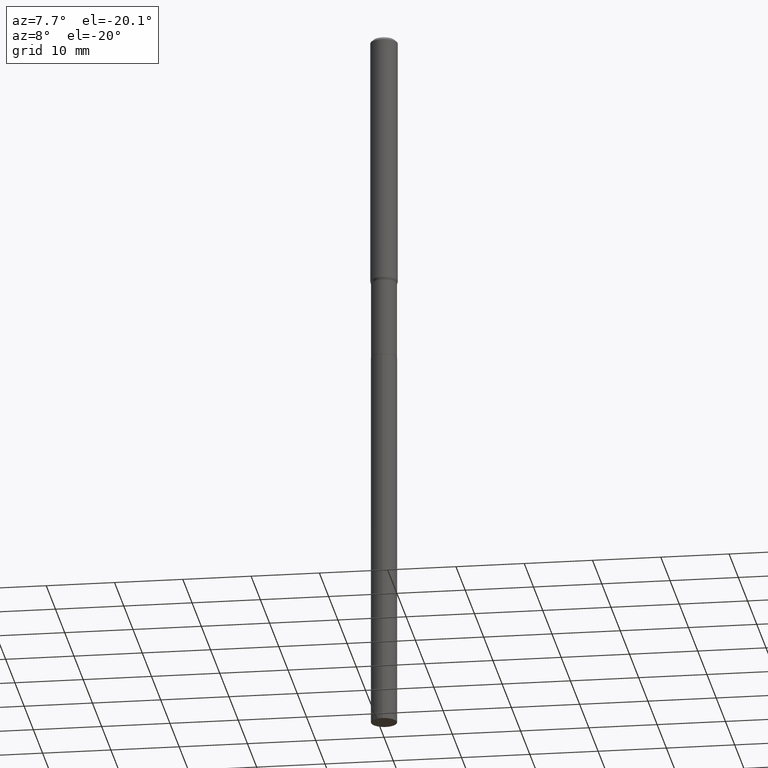
[diagram: clean part render]
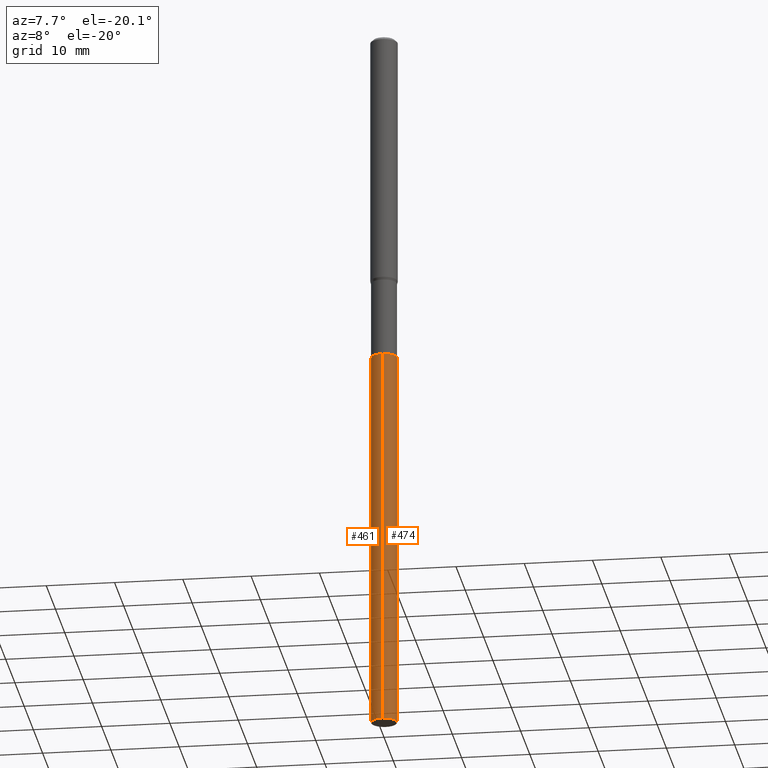
[diagram: same view with one multi-face feature highlighted, each face labeled with its STEP entity id]
A machine part, auxiliary view. The highlighted faces form ONE feature: a constant-radius fillet chain: 2 tangent blend faces with common blend radius 1.8999 mm. The faces share edges in the B-rep.
Their STEP definitions:
[1] entity #461 (Cylinder):
#1 = CARTESIAN_POINT ( 'NONE',  ( -5.223256082908854688E-16, -0.07480000000000673610, -1.929099999999999371 ) ) ;
#7 = EDGE_CURVE ( 'NONE', #168, #466, #193, .T. ) ;
#26 = CYLINDRICAL_SURFACE ( 'NONE', #119, 0.07480000000000000537 ) ;
#31 = VECTOR ( 'NONE', #179, 39.37007874015748143 ) ;
#48 = ORIENTED_EDGE ( 'NONE', *, *, #7, .F. ) ;
#53 = EDGE_CURVE ( 'NONE', #168, #243, #441, .T. ) ;
#87 = EDGE_CURVE ( 'NONE', #466, #319, #94, .T. ) ;
#94 = CIRCLE ( 'NONE', #161, 0.07480000000000000537 ) ;
#100 = DIRECTION ( 'NONE',  ( -2.445434340276301714E-29, 3.491530695986274955E-15, 1.000000000000000000 ) ) ;
#102 = CARTESIAN_POINT ( 'NONE',  ( 4.717553874011746118E-29, -6.735416650762310126E-15, -1.929099999999999593 ) ) ;
#110 = DIRECTION ( 'NONE',  ( -2.445434340276301434E-29, 3.491530695986275350E-15, 1.000000000000000000 ) ) ;
#119 = AXIS2_PLACEMENT_3D ( 'NONE', #102, #100, #218 ) ;
#125 = EDGE_LOOP ( 'NONE', ( #48, #325, #450, #287 ) ) ;
#132 = DIRECTION ( 'NONE',  ( -6.982962677686265922E-15, -1.000000000000000000, 3.652203200085913145E-15 ) ) ;
#135 = CARTESIAN_POINT ( 'NONE',  ( 1.013877619185926276E-28, -1.447570385487174997E-14, -4.145975026476887315 ) ) ;
#140 = CARTESIAN_POINT ( 'NONE',  ( 4.717553874011746118E-29, -6.735416650762310126E-15, -1.929099999999999593 ) ) ;
#144 = CARTESIAN_POINT ( 'NONE',  ( 5.314859663486021117E-16, 0.07479999999999327465, -1.929099999999999815 ) ) ;
#161 = AXIS2_PLACEMENT_3D ( 'NONE', #140, #468, #132 ) ;
#168 = VERTEX_POINT ( 'NONE', #424 ) ;
#178 = DIRECTION ( 'NONE',  ( -6.982962677686266711E-15, -1.000000000000000000, 0.000000000000000000 ) ) ;
#179 = DIRECTION ( 'NONE',  ( -2.445434340276301434E-29, 3.491530695986275350E-15, 1.000000000000000000 ) ) ;
#193 = LINE ( 'NONE', #144, #423 ) ;
#218 = DIRECTION ( 'NONE',  ( -6.982962677686266711E-15, -1.000000000000000000, 3.652203200085913145E-15 ) ) ;
#243 = VERTEX_POINT ( 'NONE', #311 ) ;
#287 = ORIENTED_EDGE ( 'NONE', *, *, #87, .F. ) ;
#298 = CARTESIAN_POINT ( 'NONE',  ( -5.223256082908855674E-16, -0.07480000000000674998, -1.929099999999999371 ) ) ;
#302 = DIRECTION ( 'NONE',  ( -2.445434340276301714E-29, 3.491530695986274955E-15, 1.000000000000000000 ) ) ;
#311 = CARTESIAN_POINT ( 'NONE',  ( -5.223256082908315304E-16, -0.07480000000001449378, -4.145975026476887315 ) ) ;
#319 = VERTEX_POINT ( 'NONE', #1 ) ;
#320 = EDGE_CURVE ( 'NONE', #243, #319, #342, .T. ) ;
#325 = ORIENTED_EDGE ( 'NONE', *, *, #53, .T. ) ;
#342 = LINE ( 'NONE', #298, #31 ) ;
#378 = FACE_OUTER_BOUND ( 'NONE', #125, .T. ) ;
#423 = VECTOR ( 'NONE', #110, 39.37007874015748143 ) ;
#424 = CARTESIAN_POINT ( 'NONE',  ( 5.314859663486563458E-16, 0.07479999999998554472, -4.145975026476887315 ) ) ;
#441 = CIRCLE ( 'NONE', #458, 0.07480000000000000537 ) ;
#450 = ORIENTED_EDGE ( 'NONE', *, *, #320, .T. ) ;
#458 = AXIS2_PLACEMENT_3D ( 'NONE', #135, #302, #178 ) ;
#461 = ADVANCED_FACE ( 'NONE', ( #378 ), #26, .T. ) ;
#466 = VERTEX_POINT ( 'NONE', #481 ) ;
#468 = DIRECTION ( 'NONE',  ( -2.445434340276301714E-29, 3.491530695986274955E-15, 1.000000000000000000 ) ) ;
#481 = CARTESIAN_POINT ( 'NONE',  ( 5.314859663486567403E-16, 0.07479999999999327465, -1.929099999999999815 ) ) ;
[2] entity #474 (Cylinder):
#1 = CARTESIAN_POINT ( 'NONE',  ( -5.223256082908854688E-16, -0.07480000000000673610, -1.929099999999999371 ) ) ;
#7 = EDGE_CURVE ( 'NONE', #168, #466, #193, .T. ) ;
#8 = EDGE_LOOP ( 'NONE', ( #327, #188, #162, #365 ) ) ;
#14 = EDGE_CURVE ( 'NONE', #319, #466, #16, .T. ) ;
#16 = CIRCLE ( 'NONE', #208, 0.07480000000000000537 ) ;
#31 = VECTOR ( 'NONE', #179, 39.37007874015748143 ) ;
#70 = DIRECTION ( 'NONE',  ( -2.445434340276301714E-29, 3.491530695986274955E-15, 1.000000000000000000 ) ) ;
#79 = DIRECTION ( 'NONE',  ( -6.982962677686266711E-15, -1.000000000000000000, 0.000000000000000000 ) ) ;
#110 = DIRECTION ( 'NONE',  ( -2.445434340276301434E-29, 3.491530695986275350E-15, 1.000000000000000000 ) ) ;
#113 = AXIS2_PLACEMENT_3D ( 'NONE', #146, #70, #303 ) ;
#118 = AXIS2_PLACEMENT_3D ( 'NONE', #199, #357, #79 ) ;
#144 = CARTESIAN_POINT ( 'NONE',  ( 5.314859663486021117E-16, 0.07479999999999327465, -1.929099999999999815 ) ) ;
#146 = CARTESIAN_POINT ( 'NONE',  ( 4.717553874011746118E-29, -6.735416650762310126E-15, -1.929099999999999593 ) ) ;
#162 = ORIENTED_EDGE ( 'NONE', *, *, #14, .F. ) ;
#166 = DIRECTION ( 'NONE',  ( -6.982962677686265922E-15, -1.000000000000000000, 3.652203200085913145E-15 ) ) ;
#168 = VERTEX_POINT ( 'NONE', #424 ) ;
#179 = DIRECTION ( 'NONE',  ( -2.445434340276301434E-29, 3.491530695986275350E-15, 1.000000000000000000 ) ) ;
#188 = ORIENTED_EDGE ( 'NONE', *, *, #7, .T. ) ;
#189 = CARTESIAN_POINT ( 'NONE',  ( 4.717553874011746118E-29, -6.735416650762310126E-15, -1.929099999999999593 ) ) ;
#193 = LINE ( 'NONE', #144, #423 ) ;
#199 = CARTESIAN_POINT ( 'NONE',  ( 1.013877619185926276E-28, -1.447570385487174997E-14, -4.145975026476887315 ) ) ;
#208 = AXIS2_PLACEMENT_3D ( 'NONE', #189, #419, #166 ) ;
#230 = FACE_OUTER_BOUND ( 'NONE', #8, .T. ) ;
#243 = VERTEX_POINT ( 'NONE', #311 ) ;
#279 = CIRCLE ( 'NONE', #118, 0.07480000000000000537 ) ;
#298 = CARTESIAN_POINT ( 'NONE',  ( -5.223256082908855674E-16, -0.07480000000000674998, -1.929099999999999371 ) ) ;
#303 = DIRECTION ( 'NONE',  ( -6.982962677686266711E-15, -1.000000000000000000, 3.652203200085913145E-15 ) ) ;
#311 = CARTESIAN_POINT ( 'NONE',  ( -5.223256082908315304E-16, -0.07480000000001449378, -4.145975026476887315 ) ) ;
#315 = EDGE_CURVE ( 'NONE', #243, #168, #279, .T. ) ;
#319 = VERTEX_POINT ( 'NONE', #1 ) ;
#320 = EDGE_CURVE ( 'NONE', #243, #319, #342, .T. ) ;
#327 = ORIENTED_EDGE ( 'NONE', *, *, #315, .T. ) ;
#342 = LINE ( 'NONE', #298, #31 ) ;
#345 = CYLINDRICAL_SURFACE ( 'NONE', #113, 0.07480000000000000537 ) ;
#357 = DIRECTION ( 'NONE',  ( -2.445434340276301714E-29, 3.491530695986274955E-15, 1.000000000000000000 ) ) ;
#365 = ORIENTED_EDGE ( 'NONE', *, *, #320, .F. ) ;
#419 = DIRECTION ( 'NONE',  ( -2.445434340276301714E-29, 3.491530695986274955E-15, 1.000000000000000000 ) ) ;
#423 = VECTOR ( 'NONE', #110, 39.37007874015748143 ) ;
#424 = CARTESIAN_POINT ( 'NONE',  ( 5.314859663486563458E-16, 0.07479999999998554472, -4.145975026476887315 ) ) ;
#466 = VERTEX_POINT ( 'NONE', #481 ) ;
#474 = ADVANCED_FACE ( 'NONE', ( #230 ), #345, .T. ) ;
#481 = CARTESIAN_POINT ( 'NONE',  ( 5.314859663486567403E-16, 0.07479999999999327465, -1.929099999999999815 ) ) ;